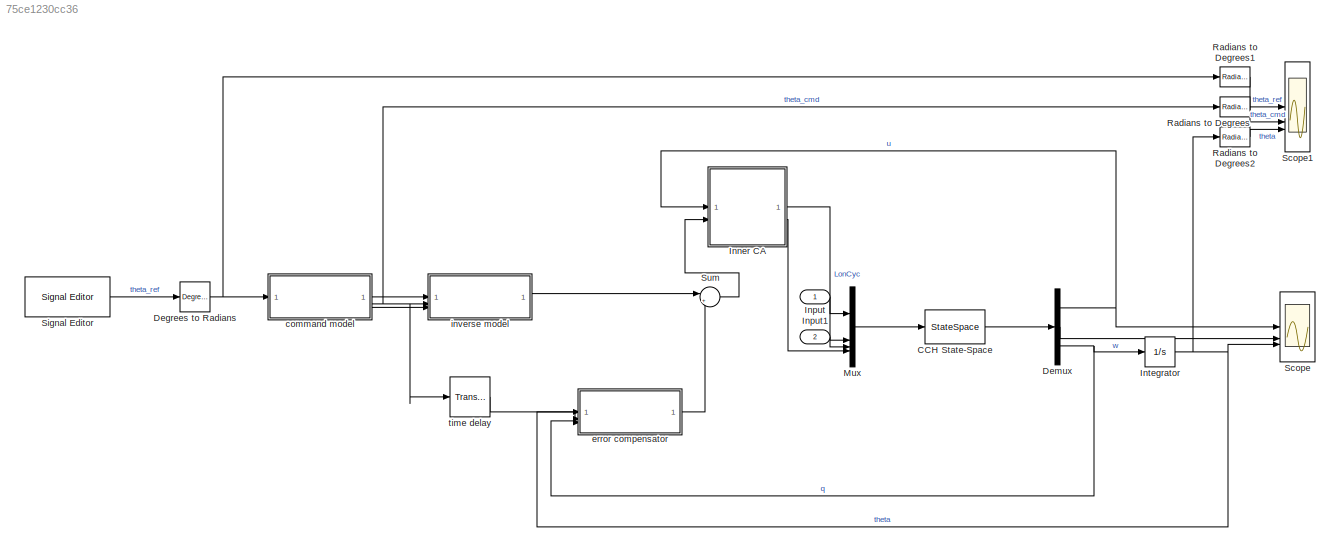
MODEL slx_75ce1230cc36
KIND model
CONFIG AbsTol = auto
CONFIG EnableMultiTasking = off
CONFIG FixedStep = auto
CONFIG MaxStep = auto
CONFIG MinStep = auto
CONFIG RelTol = 1e-3
CONFIG SampleTimeConstraint = Unconstrained
CONFIG SolverName = VariableStepAuto
CONFIG StartTime = 0.0
CONFIG StopTime = 10.0
BLOCK [StateSpace] CCH State-Space
  A = AA
  B = BB
  C = CC
  D = DD
  InitialCondition = 0
BLOCK [Reference] Degrees to Radians  REF=simulink_extras/Transformations/Degrees to
Radians
  SourceBlock = simulink_extras/Transformations/Degrees to\nRadians
  SourceType = DegreesToRadians
BLOCK [Demux] Demux
  Outputs = 3
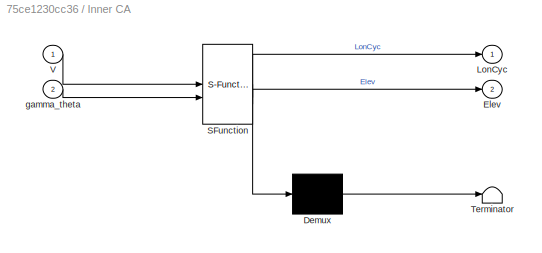
BLOCK [SubSystem] Inner CA
  ErrorFcn = Stateflow.Translate.translate
  LibrarySourceBlock = simulink/User-Defined\nFunctions/MATLAB Function
  PermitHierarchicalResolution = ExplicitOnly
  SFBlockType = MATLAB Function
  TreatAsAtomicUnit = on
BLOCK [Demux] Inner CA/ Demux 
  Outputs = 1
BLOCK [S-Function] Inner CA/ SFunction 
  EnableBusSupport = on
  FunctionName = sf_sfun
  Parameters = M_delta_e,M_theta_s,V_l_transit,V_u_transit,epsilon
  PortCounts = [2 3]
  SFcnIsStateOwnerBlock = off
  SFunctionDeploymentMode = off
  Tag = Stateflow S-Function 2
BLOCK [Terminator] Inner CA/ Terminator 
BLOCK [Outport] Inner CA/Elev
  Port = 2
BLOCK [Outport] Inner CA/LonCyc
BLOCK [Inport] Inner CA/V
BLOCK [Inport] Inner CA/gamma_theta
  Port = 2
BLOCK [Inport] Input
BLOCK [Inport] Input1
  Port = 2
BLOCK [Integrator] Integrator
BLOCK [Mux] Mux
  DisplayOption = bar
BLOCK [Reference] Radians to Degrees  REF=simulink_extras/Transformations/Radians
to Degrees
  SourceBlock = simulink_extras/Transformations/Radians\nto Degrees
  SourceType = RadiansToDegrees
BLOCK [Reference] Radians to Degrees1  REF=simulink_extras/Transformations/Radians
to Degrees
  SourceBlock = simulink_extras/Transformations/Radians\nto Degrees
  SourceType = RadiansToDegrees
BLOCK [Reference] Radians to Degrees2  REF=simulink_extras/Transformations/Radians
to Degrees
  SourceBlock = simulink_extras/Transformations/Radians\nto Degrees
  SourceType = RadiansToDegrees
BLOCK [Scope] Scope
  Floating = off
  NumInputPorts = 3
  ScopeSpecificationString = Simulink.scopes.TimeScopeBlockCfg('CurrentConfiguration', extmgr.ConfigurationSet(extmgr.Configuration('Core','General UI',true),extmgr.Configuration('Core','Source UI',true),extmgr.Configuration('Sources','WiredSimulink',true),extmgr.Configuration('Visuals','Time Domain',true),extmgr.Configuration('Tools','Plot Navigation',true),extmgr.Configuration('Tools','Measurements',true)),'Version','2023a'...<+1ch>
BLOCK [Scope] Scope1
  Floating = off
  NumInputPorts = 3
  ScopeSpecificationString = Simulink.scopes.TimeScopeBlockCfg('CurrentConfiguration', extmgr.ConfigurationSet(extmgr.Configuration('Core','General UI',true),extmgr.Configuration('Core','Source UI',true),extmgr.Configuration('Sources','WiredSimulink',true,'DataLoggingVariableName','ScopeData1'),extmgr.Configuration('Visuals','Time Domain',true,'SerializedDisplays',{struct('MinYLimReal','-1.35672','MaxYLimReal','1.34582','YLab...<+1415ch>
BLOCK [Reference] Signal Editor  REF=SignalEditorBlockLib/Signal Editor
  LibrarySourceBlock = simulink/Sources/Signal Editor
  SourceBlock = SignalEditorBlockLib/Signal Editor
  SourceType = SignalEditor
  UserDataPersistent = on
BLOCK [Sum] Sum
  Inputs = |+-
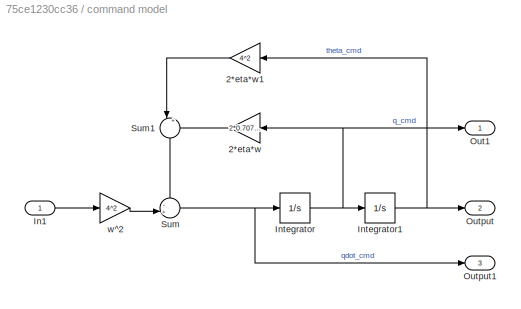
BLOCK [SubSystem] command model
BLOCK [Gain] command model/2*eta*w
  Gain = 2*0.707*4
BLOCK [Gain] command model/2*eta*w1
  Gain = 4^2
BLOCK [Inport] command model/In1
BLOCK [Integrator] command model/Integrator
BLOCK [Integrator] command model/Integrator1
BLOCK [Outport] command model/Out1
BLOCK [Outport] command model/Output
  Port = 2
BLOCK [Outport] command model/Output1
  Port = 3
BLOCK [Sum] command model/Sum
  Inputs = -+|
BLOCK [Sum] command model/Sum1
  Inputs = |++
  NameLocation = left
BLOCK [Gain] command model/w^2
  Gain = 4^2
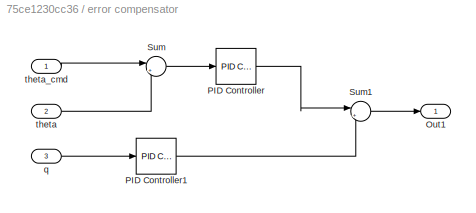
BLOCK [SubSystem] error compensator
BLOCK [Outport] error compensator/Out1
BLOCK [Reference] error compensator/PID Controller  REF=slpidlib/PID Controller
  LibrarySourceBlock = simulink/Continuous/PID Controller
  SourceBlock = slpidlib/PID Controller
  SourceType = PID 1dof
BLOCK [Reference] error compensator/PID Controller1  REF=slpidlib/PID Controller
  LibrarySourceBlock = simulink/Continuous/PID Controller
  SourceBlock = slpidlib/PID Controller
  SourceType = PID 1dof
BLOCK [Sum] error compensator/Sum
  Inputs = |+-
BLOCK [Sum] error compensator/Sum1
  Inputs = |++
BLOCK [Inport] error compensator/q
  Port = 3
BLOCK [Inport] error compensator/theta
  Port = 2
BLOCK [Inport] error compensator/theta_cmd
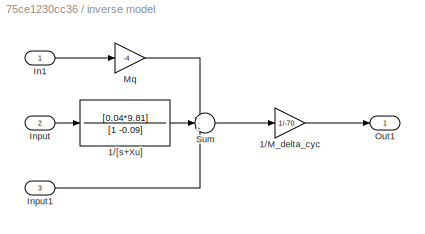
BLOCK [SubSystem] inverse model
BLOCK [Gain] inverse model/1//M_delta_cyc
  Gain = 1/-70
BLOCK [TransferFcn] inverse model/1//[s+Xu]
  Denominator = [1 -0.09]
  Numerator = [0.04*9.81]
BLOCK [Inport] inverse model/In1
BLOCK [Inport] inverse model/Input
  Port = 2
BLOCK [Inport] inverse model/Input1
  Port = 3
BLOCK [Gain] inverse model/Mq
  Gain = -4
BLOCK [Outport] inverse model/Out1
BLOCK [Sum] inverse model/Sum
  Inputs = --+
BLOCK [TransportDelay] time delay
  DelayTime = 0.12
LINE CCH State-Space:1 -> Demux:1
NET Degrees to Radians:1 -> Radians to Degrees1:1, command model:1
NET Demux:1 -> Inner CA:1, Scope:1
LINE Demux:2 -> Scope:2
NET Demux:3 -> Integrator:1, error compensator:3
LINE Inner CA:1 -> Mux:2
LINE Inner CA:2 -> Mux:4
LINE Input1:1 -> Mux:3
LINE Input:1 -> Mux:1
NET Integrator:1 -> Radians to Degrees2:1, Scope:3, error compensator:2
LINE Mux:1 -> CCH State-Space:1
LINE Radians to Degrees1:1 -> Scope1:1
LINE Radians to Degrees2:1 -> Scope1:3
LINE Radians to Degrees:1 -> Scope1:2
LINE Signal Editor:1 -> Degrees to Radians:1
LINE Sum:1 -> Inner CA:2
LINE command model/2*eta*w1:1 -> command model/Sum1:1
LINE command model/2*eta*w:1 -> command model/Sum1:2
LINE command model/In1:1 -> command model/w^2:1
NET command model/Integrator1:1 -> command model/2*eta*w1:1, command model/Output:1
NET command model/Integrator:1 -> command model/2*eta*w:1, command model/Integrator1:1, command model/Out1:1
LINE command model/Sum1:1 -> command model/Sum:1
NET command model/Sum:1 -> command model/Integrator:1, command model/Output1:1
LINE command model/w^2:1 -> command model/Sum:2
LINE command model:1 -> inverse model:1
NET command model:2 -> Radians to Degrees:1, inverse model:2, time delay:1
LINE command model:3 -> inverse model:3
LINE error compensator/PID Controller1:1 -> error compensator/Sum1:2
LINE error compensator/PID Controller:1 -> error compensator/Sum1:1
LINE error compensator/Sum1:1 -> error compensator/Out1:1
LINE error compensator/Sum:1 -> error compensator/PID Controller:1
LINE error compensator/q:1 -> error compensator/PID Controller1:1
LINE error compensator/theta:1 -> error compensator/Sum:2
LINE error compensator/theta_cmd:1 -> error compensator/Sum:1
LINE error compensator:1 -> Sum:2
LINE inverse model/1//M_delta_cyc:1 -> inverse model/Out1:1
LINE inverse model/1//[s+Xu]:1 -> inverse model/Sum:2
LINE inverse model/In1:1 -> inverse model/Mq:1
LINE inverse model/Input1:1 -> inverse model/Sum:3
LINE inverse model/Input:1 -> inverse model/1//[s+Xu]:1
LINE inverse model/Mq:1 -> inverse model/Sum:1
LINE inverse model/Sum:1 -> inverse model/1//M_delta_cyc:1
LINE inverse model:1 -> Sum:1
LINE time delay:1 -> error compensator:1
note: NET lines group one-source signal fan-out (src -> all destinations, sorted); 1:1 wires keep LINE
CHART Inner CA states=1 transitions=1
  STATE_LABEL 'eML_blk_kernel()'
  STATE_LABEL 'SCRIPT:\nfunction [LonCyc, Elev] = fcn(V, gamma_theta, V_l_transit, epsilon, V_u_transit, M_theta_s, M_delta_e)\n    \n    % Allocation Weights\n    if V<V_l_transit\n        rho_theta_c = 1;\n        rho_delta_e = epsilon;\n\n    elseif V>V_l_transit && V<V_u_transit\n        rho_theta_c = 1 - 1/(V_u_transit-V_l_transit)*(V-V_l_transit);\n        rho_delta_e = 1/(V_u_transit-V_l_transit)*(V-V_l_transit);\n\n...<+336ch>'
CHART  states=0 transitions=0
